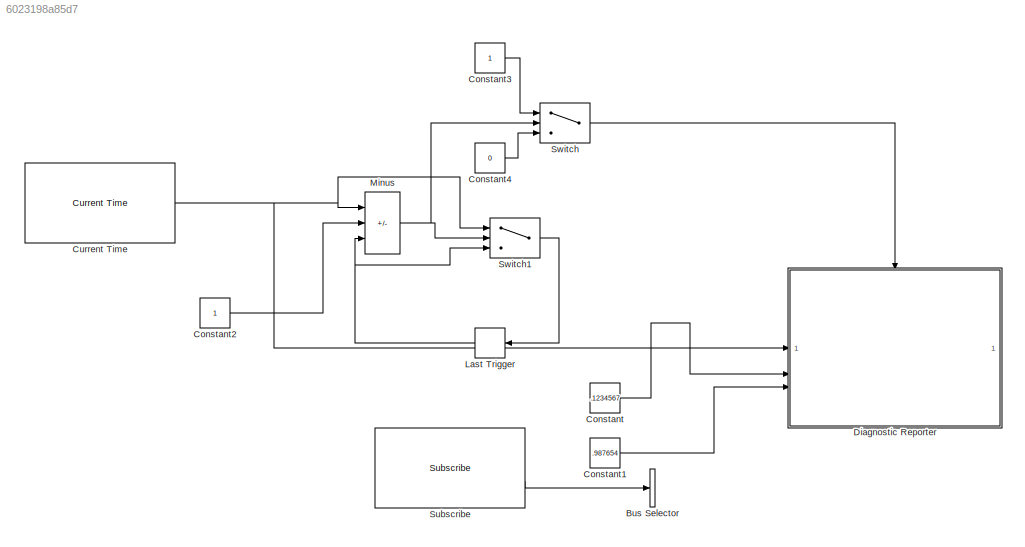
MODEL slx_6023198a85d7
KIND model
CONFIG AbsTol = auto
CONFIG EnableMultiTasking = off
CONFIG FixedStep = auto
CONFIG MaxStep = auto
CONFIG MinStep = auto
CONFIG RelTol = 1e-3
CONFIG SampleTimeConstraint = Unconstrained
CONFIG SolverName = FixedStepAuto
CONFIG StartTime = 0.0
CONFIG StopTime = inf
WORKSPACE source: mxarray member
WORKSPACE SL_ROS_VariableLengthArrays_MaxSizes: object (value not decoded)
BLOCK [BusSelector] Bus Selector
  OutputSignals = data
BLOCK [Constant] Constant
  Value = .1234567
BLOCK [Constant] Constant1
  Value = .987654
BLOCK [Constant] Constant2
BLOCK [Constant] Constant3
BLOCK [Constant] Constant4
  Value = 0
BLOCK [Reference] Current Time  REF=ros2lib/Current Time  (lib defined in slx_3c1549211f48)
  SourceBlock = ros2lib/Current Time
  SourceType = ros.slros2.internal.block.CurrentTime
BLOCK [SubSystem] Diagnostic Reporter
  ReferencedSubsystem = Diagnostic_Reporter
BLOCK [Memory] Last Trigger
BLOCK [Sum] Minus
  IconShape = rectangular
  Inputs = +--
BLOCK [Reference] Subscribe  REF=ros2lib/Subscribe  (lib defined in slx_3c1549211f48)
  SourceBlock = ros2lib/Subscribe
  SourceType = ROS2 Subscribe
BLOCK [Switch] Switch
  Criteria = u2 > Threshold
  InputSameDT = off
  SaturateOnIntegerOverflow = off
BLOCK [Switch] Switch1
  Criteria = u2 > Threshold
  InputSameDT = off
  SaturateOnIntegerOverflow = off
LINE Constant1:1 -> Diagnostic Reporter:3
LINE Constant2:1 -> Minus:2
LINE Constant3:1 -> Switch:1
LINE Constant4:1 -> Switch:3
LINE Constant:1 -> Diagnostic Reporter:2
NET Current Time:1 -> Diagnostic Reporter:1, Minus:1, Switch1:1
NET Last Trigger:1 -> Minus:3, Switch1:3
NET Minus:1 -> Switch1:2, Switch:2
LINE Subscribe:2 -> Bus Selector:1
LINE Switch1:1 -> Last Trigger:1
LINE Switch:1 -> Diagnostic Reporter:enable
note: NET lines group one-source signal fan-out (src -> all destinations, sorted); 1:1 wires keep LINE
